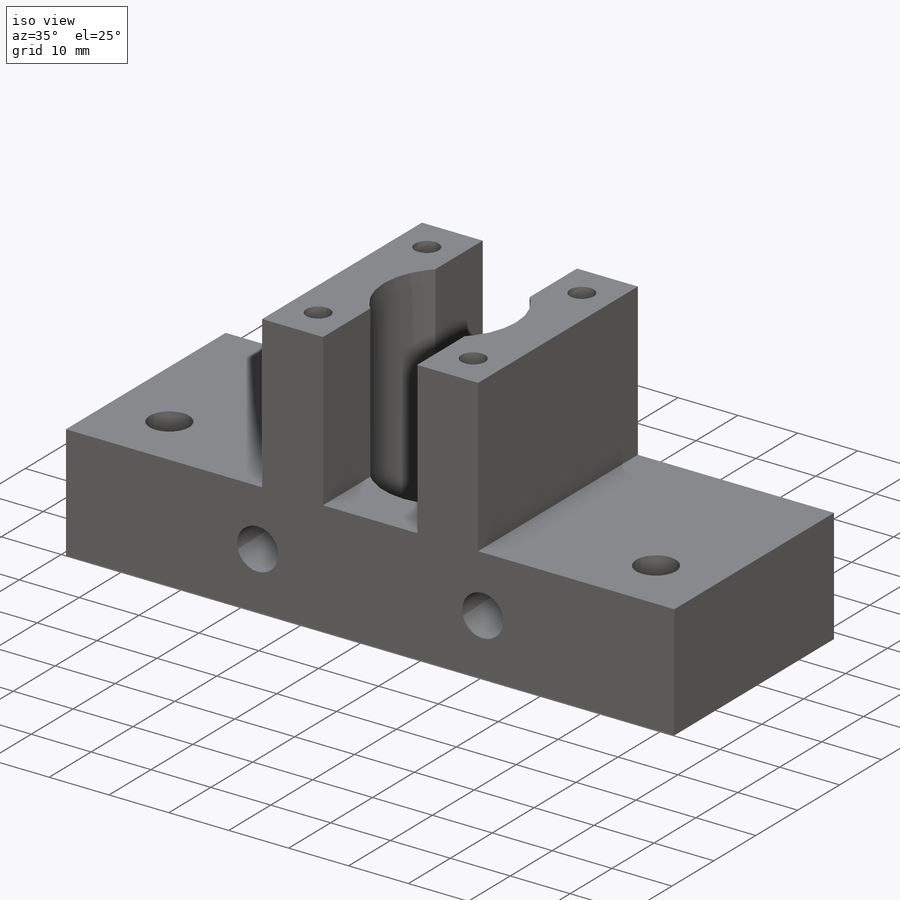
[diagram: iso view]
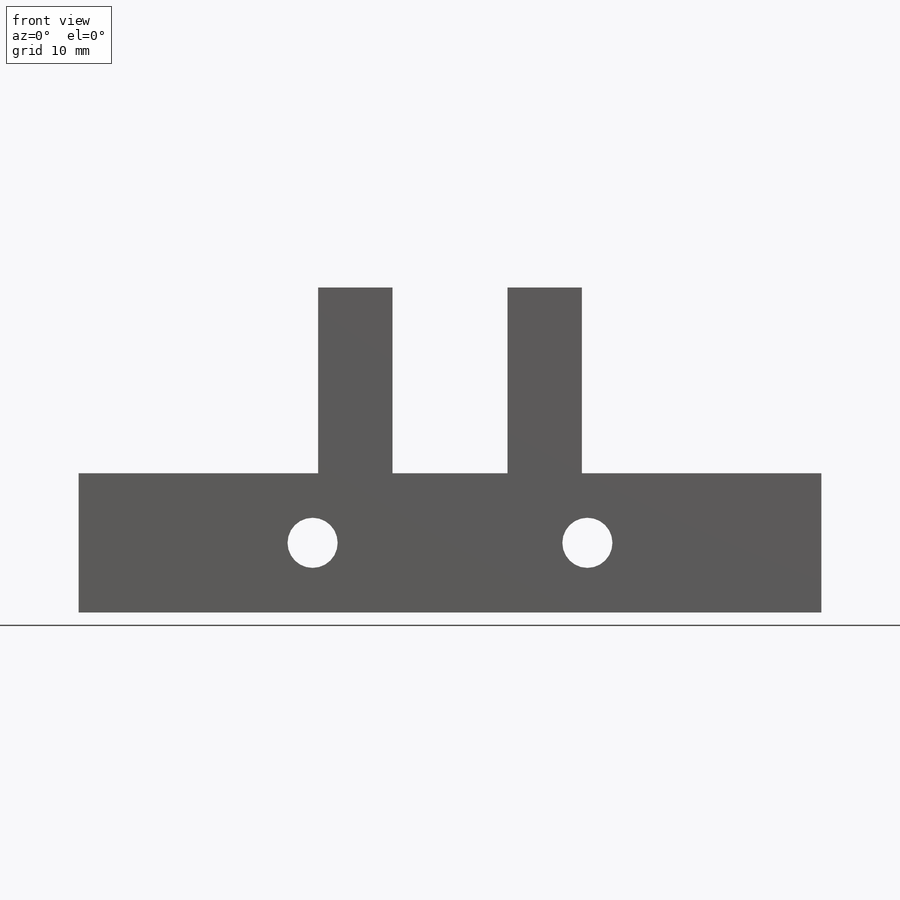
[diagram: front view]
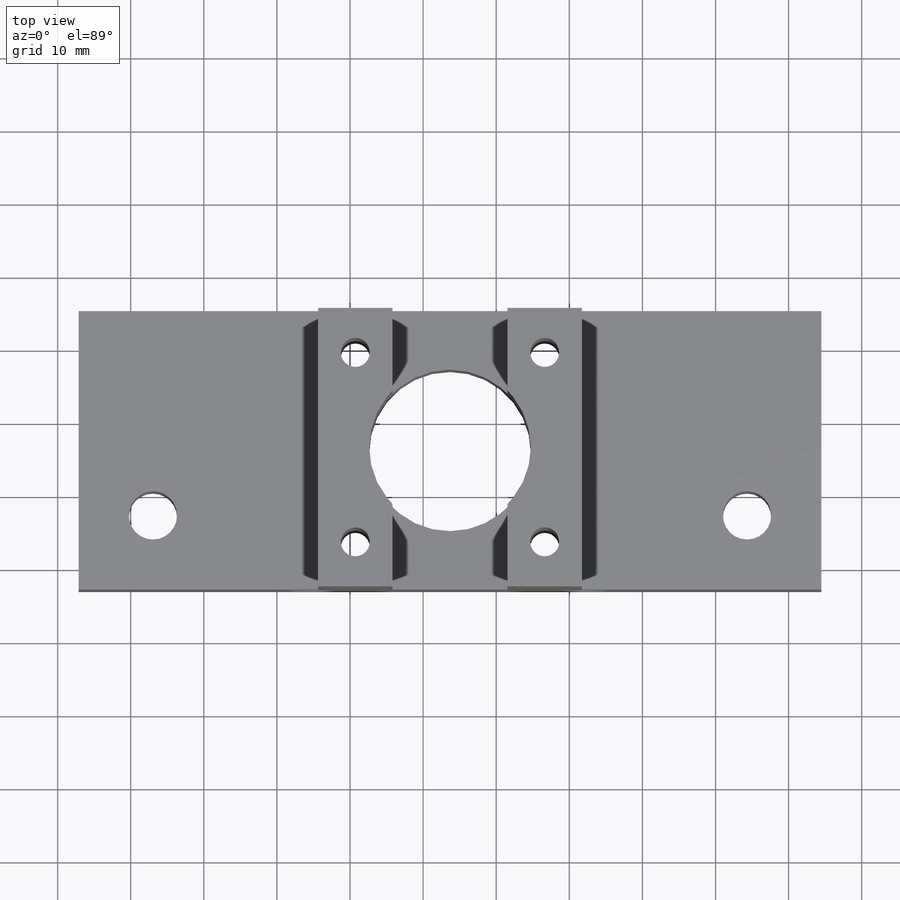
[diagram: top view]
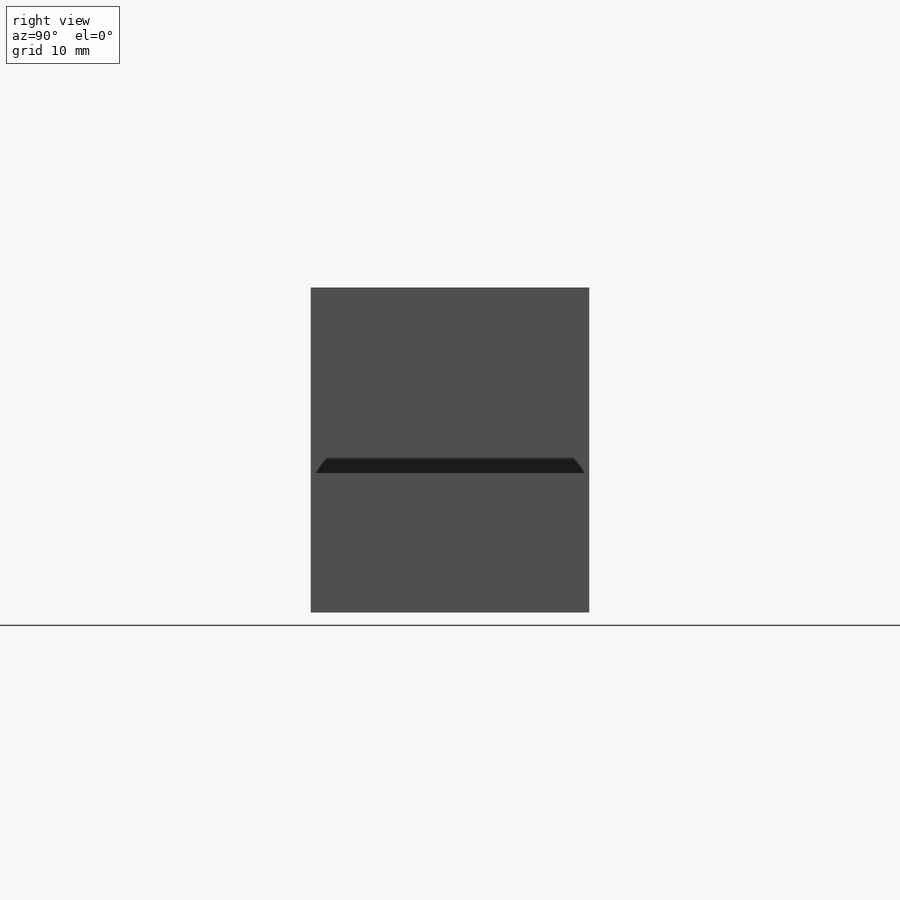
[diagram: right view]
SOLIDWORKS PART (.sldprt)
format: sldprt  version: not decoded by parser v0  size: 266,752 bytes
history: native  units: mm
features: sketch x7, cut_extrude x4, extrude x2, material x1 (+12 scaffold rows collapsed)
feature tree (26):
  scaffold x12  (default folders/planes/origin — collapsed)
  material  "Material <not specified>"
  sketch  "Sketch3"  dims[D1=101.6mm D2=38.1mm]
  extrude  "Boss-Extrude2"  Depth=19.05mm
  sketch  "Sketch5"  dims[D1=22.098mm D2=50.8mm D3=19.05mm D4=32.766mm D5=32.766mm D6=10.16mm D7=10.16mm D8=36.068mm]
  sketch  "Sketch5<4>"
  extrude  "Boss-Extrude4"  Depth=25.4mm
  sketch  "Sketch7"  dims[c1.D12=22.098mm c1.D13=3.9624mm c1.D14=3.9624mm c1.D15=3.9624mm c1.D16=3.9624mm c1.D1=18.034mm c1.D2=18.034mm c1.D3=19.05mm c1.D4=25.908mm c1.D5=25.908mm c1.D6=25.908mm c2.D5=25.908mm c2.D6=25.908mm c2.D7=25.908mm c2.D8=~36.639445mm c2.D9=18.3134mm c2.D10=5.08mm c2.D11=5.08mm c2.D12=5.08mm]
  cut_extrude  "Cut-Extrude2"  [1 undecoded]
  sketch  "Sketch8"  dims[D1=10.16mm D2=10.16mm]
  cut_extrude  "Cut-Extrude3"  Depth=25.4mm
  sketch  "Sketch9"  dims[c1.D1=~6.301553mm c1.D5=6.604mm c1.D6=6.604mm c2.D1=10.16mm c2.D2=10.16mm c2.D3=10.16mm c2.D4=10.16mm]
  cut_extrude  "Cut-Extrude4"  [1 undecoded]
  sketch  "Sketch11"  dims[D5=6.858mm D6=6.858mm D1=37.592mm D2=32.004mm D3=9.525mm D4=9.525mm]
  cut_extrude  "Cut-Extrude5"  [1 undecoded]
decode coverage: 9 of 13 modeling features carry decoded parameters
note: ~ marks probable driven/reference dimensions
note: 3 parameter values undecoded
summary: no parameter record found for 3 features
note: suppression state not decoded; provenance and decode notes live in map.json
